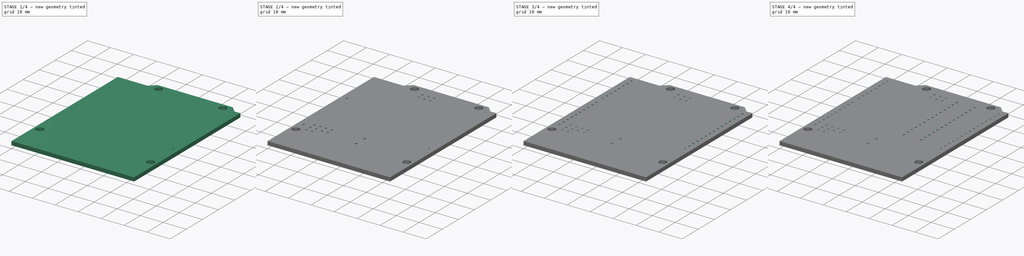
[diagram: build sequence overview — one tinted view per stage of 4, left to right]
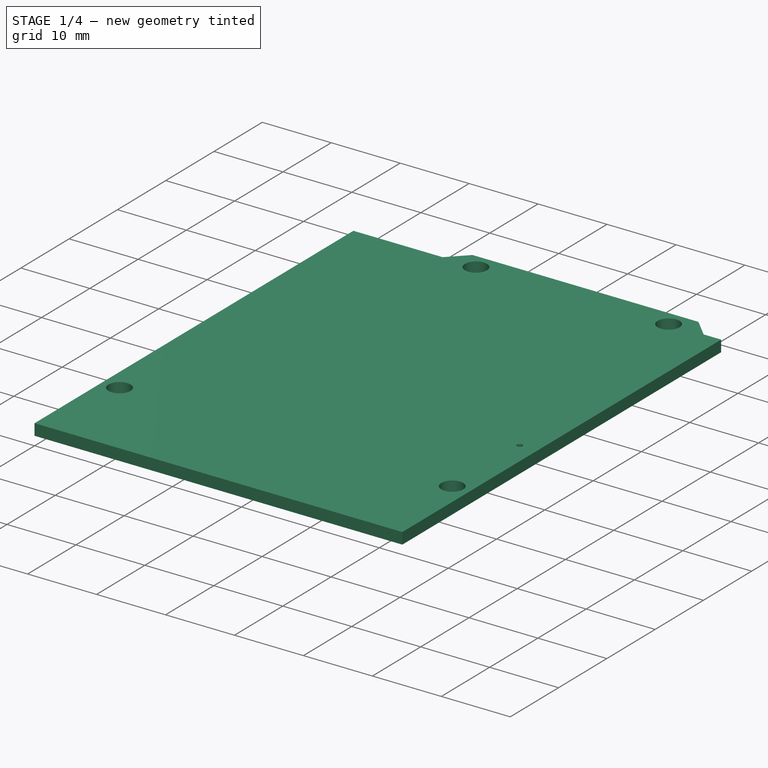
[diagram: stage 1 of 4 — iso view after this stage's code; geometry added in this stage tinted green]
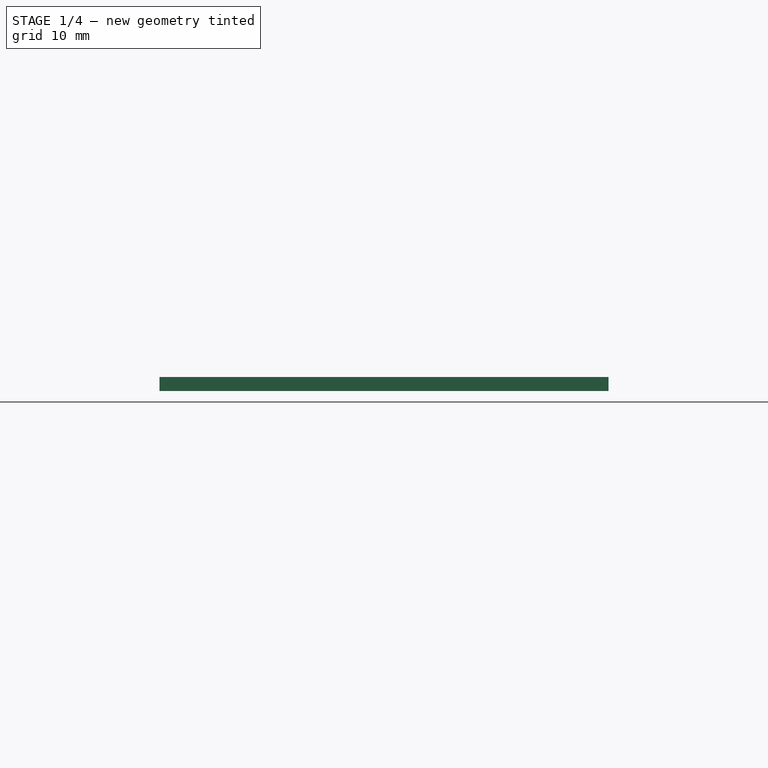
[diagram: stage 1 of 4 — front view after this stage's code; geometry added in this stage tinted green]
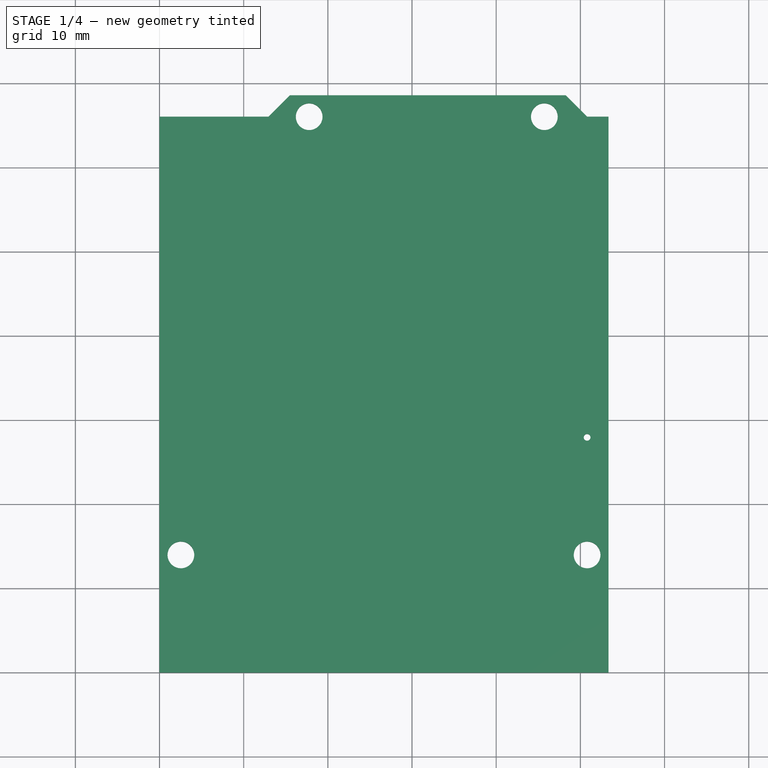
[diagram: stage 1 of 4 — top view after this stage's code; geometry added in this stage tinted green]
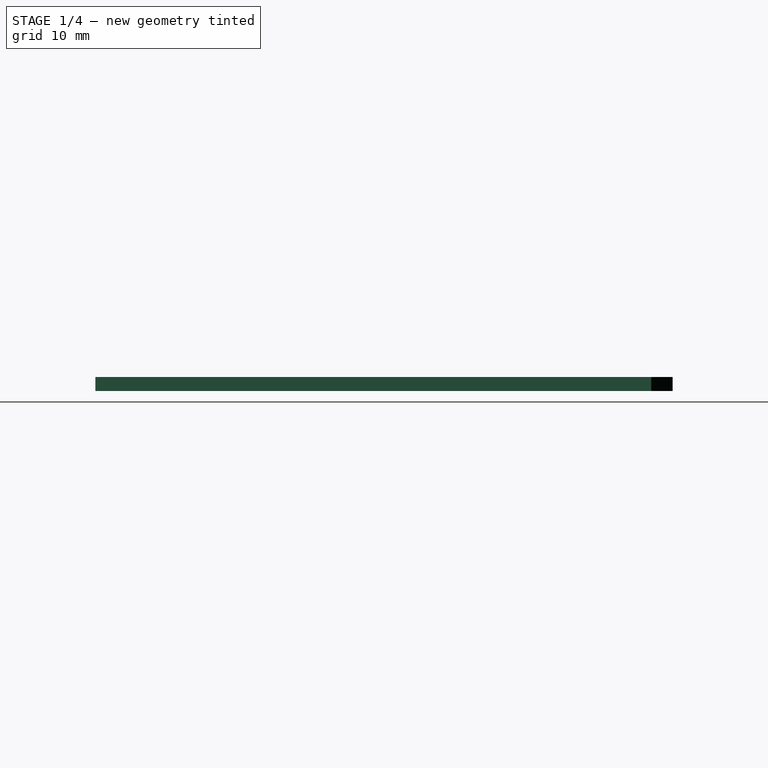
[diagram: stage 1 of 4 — right view after this stage's code; geometry added in this stage tinted green]
FCSTD DOCUMENT  (FreeCAD 0.18R4 (GitTag))
Label: arduinounopcb
License: All rights reserved
LicenseURL: http://en.wikipedia.org/wiki/All_rights_reserved
objects: Sketcher::SketchObject×6, PartDesign::Pocket×5, PartDesign::LinearPattern×4, PartDesign::Pad×1, PartDesign::Body×1, App::Part×1
note: 23 computed .brp shape members not serialized (recipe doc carries the construction recipe); baked Part::Feature solids carry a one-line shape summary decoded from their .brp

FEATURE [Sketcher::SketchObject] Sketch
  MapMode = 5
  Support = -> [XY_Plane001]
  sketch-geometry (13):
    g0: LineSegment StartX=0 StartY=0 StartZ=0 EndX=53.34 EndY=0 EndZ=0
    g1: LineSegment StartX=53.34 StartY=0 StartZ=0 EndX=53.34 EndY=66.04 EndZ=0
    g2: LineSegment StartX=0 StartY=66.04 StartZ=0 EndX=0 EndY=0 EndZ=0
    g3: LineSegment StartX=0 StartY=66.04 StartZ=0 EndX=12.95 EndY=66.04 EndZ=0
    g4: LineSegment StartX=12.95 StartY=66.04 StartZ=0 EndX=15.49 EndY=68.58 EndZ=0
    g5: LineSegment StartX=15.49 StartY=68.58 StartZ=0 EndX=48.26 EndY=68.58 EndZ=0
    g6: LineSegment StartX=48.26 StartY=68.58 StartZ=0 EndX=50.8 EndY=66.04 EndZ=0
    g7: LineSegment StartX=50.8 StartY=66.04 StartZ=0 EndX=53.34 EndY=66.04 EndZ=0
    g8: Circle CenterX=17.78 CenterY=66.04 CenterZ=0 NormalX=0 NormalY=0 NormalZ=1 AngleXU=0 Radius=1.5875
    g9: Circle CenterX=45.72 CenterY=66.04 CenterZ=0 NormalX=0 NormalY=0 NormalZ=1 AngleXU=0 Radius=1.5875
    g10: Circle CenterX=2.54 CenterY=13.97 CenterZ=0 NormalX=0 NormalY=0 NormalZ=1 AngleXU=0 Radius=1.5875
    g11: Circle CenterX=50.8 CenterY=13.97 CenterZ=0 NormalX=0 NormalY=0 NormalZ=1 AngleXU=0 Radius=1.5875
    g12: LineSegment [constr] StartX=12.95 StartY=66.04 StartZ=0 EndX=50.8 EndY=66.04 EndZ=0
  constraints (37):
    c: Coincident(g0,g1)
    c: Coincident(g2,g0)
    c: Horizontal(g0)
    c: Vertical(g1)
    c: Vertical(g2)
    c: Coincident(g0,g-1)
    c: Coincident(g2,g3)
    c: Horizontal(g3)
    c: Coincident(g3,g4)
    c: Coincident(g4,g5)
    c: Horizontal(g5)
    c: Coincident(g5,g6)
    c: Coincident(g6,g7)
    c: Coincident(g7,g1)
    c: Horizontal(g7)
    c: DistanceY(g2,g2) = 66.04
    c: Equal(g1,g2)
    c: Horizontal(g11,g10)
    c: Equal(g10,g11)
    c: Equal(g11,g9)
    c: Equal(g9,g8)
    c: Radius(g11) = 1.5875
    c: DistanceY(g0,g11) = 13.97
    c: DistanceX(g8,g1) = 35.56
    c: Coincident(g12,g3)
    c: Coincident(g12,g6)
    c: Angle(g12,g4) = 0.785398
    c: Angle(g6,g12) = 0.785398
    c: DistanceX(g7,g7) = 2.54
    c: DistanceX(g3,g1) = 40.39
    c: DistanceY(g0,g5) = 68.58
    c: DistanceX(g0,g0) = 53.34
    c: PointOnObject(g8,g12)
    c: PointOnObject(g9,g12)
    c: DistanceX(g9,g1) = 7.62
    c: DistanceX(g11,g0) = 2.54
    c: DistanceX(g10,g0) = 50.8
FEATURE [PartDesign::Pad] Pad
  Length = 1.65
  Length2 = 100
  Profile = -> Sketch
  Refine = true
  Type = 0
FEATURE [Sketcher::SketchObject] Sketch001
  ExternalGeometry = -> [Pad]
  MapMode = 5
  Placement = pos=(0,0,1.65) rot=(0,0,1;0rad)
  Support = -> [Pad]
  sketch-geometry (1):
    g0: Circle CenterX=50.8 CenterY=27.94 CenterZ=0 NormalX=0 NormalY=0 NormalZ=1 AngleXU=0 Radius=0.4
  constraints (3):
    c: DistanceY(g-4,g0) = 27.94
    c: Radius(g0) = 0.4
    c: DistanceX(g0,g-4) = 2.54
FEATURE [PartDesign::Pocket] Pocket
  BaseFeature = -> Pad
  Length = 2
  Length2 = 100
  Profile = -> Sketch001
  Refine = true
  Type = 0
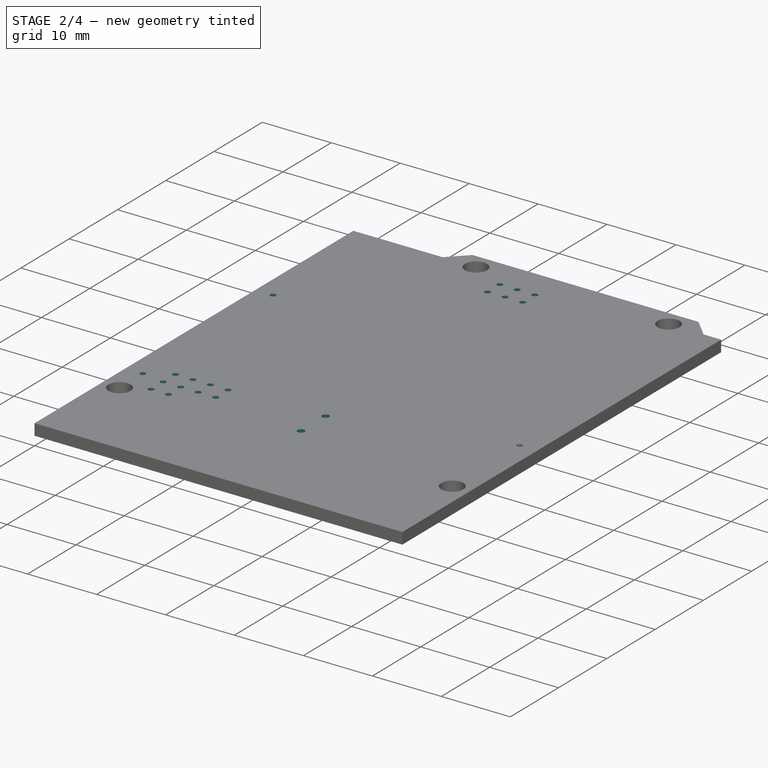
[diagram: stage 2 of 4 — iso view after this stage's code; geometry added in this stage tinted green]
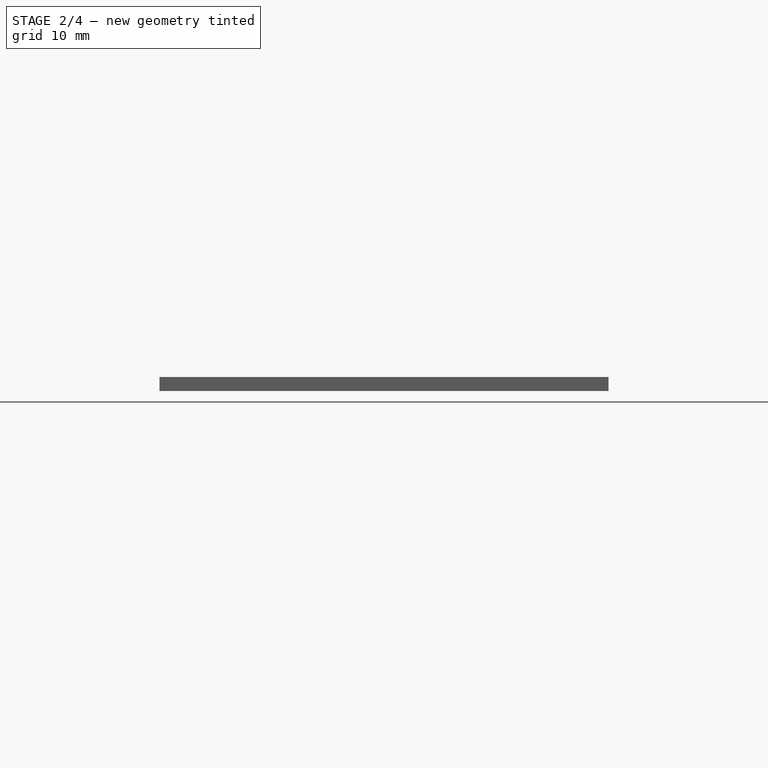
[diagram: stage 2 of 4 — front view after this stage's code; geometry added in this stage tinted green]
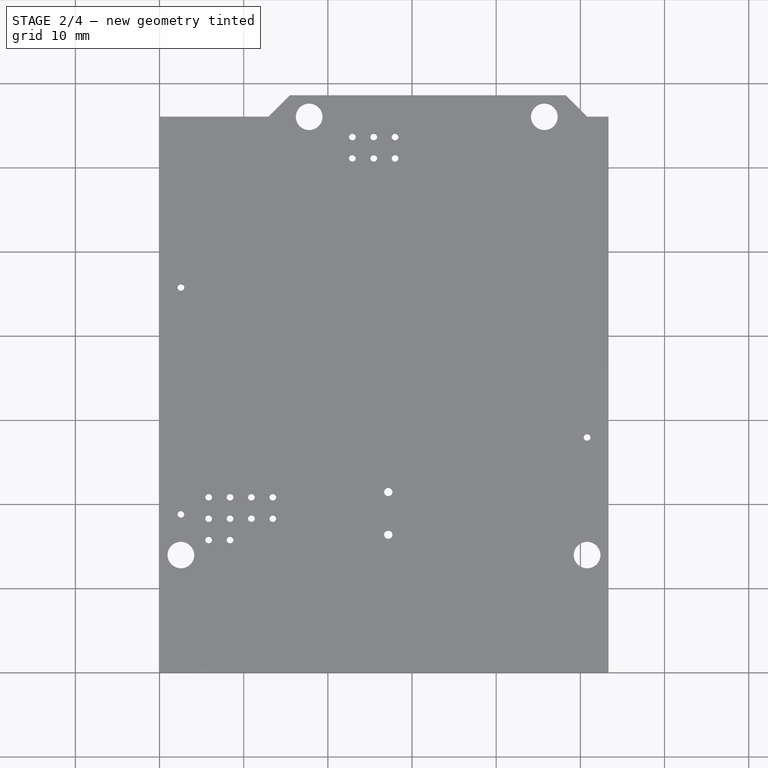
[diagram: stage 2 of 4 — top view after this stage's code; geometry added in this stage tinted green]
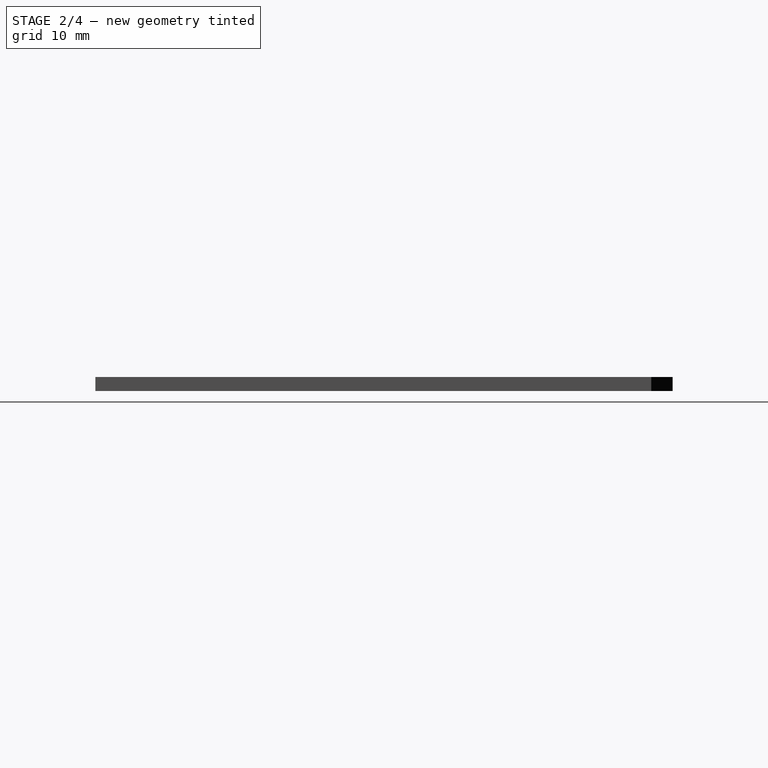
[diagram: stage 2 of 4 — right view after this stage's code; geometry added in this stage tinted green]
FEATURE [Sketcher::SketchObject] Sketch002
  ExternalGeometry = -> [Pocket]
  MapMode = 5
  Placement = pos=(0,0,1.65) rot=(0,0,1;0rad)
  Support = -> [Pocket]
  sketch-geometry (1):
    g0: Circle CenterX=2.54 CenterY=18.8 CenterZ=0 NormalX=0 NormalY=0 NormalZ=1 AngleXU=0 Radius=0.4
  constraints (3):
    c: Equal(g-3,g0)
    c: DistanceX(g-1,g0) = 2.54
    c: DistanceY(g-1,g0) = 18.8
FEATURE [PartDesign::Pocket] Pocket001
  BaseFeature = -> Pocket
  Length = 2
  Length2 = 100
  Profile = -> Sketch002
  Refine = true
  Type = 0
FEATURE [Sketcher::SketchObject] Sketch003
  ExternalGeometry = -> [Pocket001]
  MapMode = 5
  Placement = pos=(0,0,1.65) rot=(0,0,1;0rad)
  Support = -> [Pocket001]
  sketch-geometry (1):
    g0: Circle CenterX=2.54 CenterY=45.75 CenterZ=0 NormalX=0 NormalY=0 NormalZ=1 AngleXU=0 Radius=0.4
  constraints (3):
    c: DistanceY(g-1,g0) = 45.75
    c: Equal(g0,g-3)
    c: Vertical(g0,g-3)
FEATURE [PartDesign::Pocket] Pocket002
  BaseFeature = -> Pocket001
  Length = 2
  Length2 = 100
  Profile = -> Sketch003
  Refine = true
  Type = 0
FEATURE [Sketcher::SketchObject] Sketch004
  ExternalGeometry = -> [Pocket002]
  MapMode = 5
  Placement = pos=(0,0,1.65) rot=(0,0,1;0rad)
  Support = -> [Pocket002]
  sketch-geometry (32):
    g0: Circle CenterX=22.91 CenterY=63.64 CenterZ=0 NormalX=0 NormalY=0 NormalZ=1 AngleXU=0 Radius=0.4
    g1: Circle CenterX=25.45 CenterY=63.64 CenterZ=0 NormalX=0 NormalY=0 NormalZ=1 AngleXU=0 Radius=0.4
    g2: Circle CenterX=27.99 CenterY=63.64 CenterZ=0 NormalX=0 NormalY=0 NormalZ=1 AngleXU=0 Radius=0.4
    g3: Circle CenterX=22.91 CenterY=61.1 CenterZ=0 NormalX=0 NormalY=0 NormalZ=1 AngleXU=0 Radius=0.4
    g4: Circle CenterX=25.45 CenterY=61.1 CenterZ=0 NormalX=0 NormalY=0 NormalZ=1 AngleXU=0 Radius=0.4
    g5: Circle CenterX=27.99 CenterY=61.1 CenterZ=0 NormalX=0 NormalY=0 NormalZ=1 AngleXU=0 Radius=0.4
    g6: LineSegment [constr] StartX=22.91 StartY=63.64 StartZ=0 EndX=22.91 EndY=61.1 EndZ=0
    g7: LineSegment [constr] StartX=22.91 StartY=61.1 StartZ=0 EndX=25.45 EndY=61.1 EndZ=0
    g8: LineSegment [constr] StartX=25.45 StartY=61.1 StartZ=0 EndX=25.45 EndY=63.64 EndZ=0
    g9: LineSegment [constr] StartX=25.45 StartY=63.64 StartZ=0 EndX=27.99 EndY=63.64 EndZ=0
    g10: LineSegment [constr] StartX=27.99 StartY=63.64 StartZ=0 EndX=27.99 EndY=61.1 EndZ=0
    g11: Circle CenterX=5.84 CenterY=20.83 CenterZ=0 NormalX=0 NormalY=0 NormalZ=1 AngleXU=0 Radius=0.4
    g12: Circle CenterX=8.38 CenterY=20.83 CenterZ=0 NormalX=0 NormalY=0 NormalZ=1 AngleXU=0 Radius=0.4
    g13: Circle CenterX=10.92 CenterY=20.83 CenterZ=0 NormalX=0 NormalY=0 NormalZ=1 AngleXU=0 Radius=0.4
    g14: Circle CenterX=13.46 CenterY=20.83 CenterZ=0 NormalX=0 NormalY=0 NormalZ=1 AngleXU=0 Radius=0.4
    g15: Circle CenterX=5.84 CenterY=18.29 CenterZ=0 NormalX=0 NormalY=0 NormalZ=1 AngleXU=0 Radius=0.4
    g16: Circle CenterX=8.38 CenterY=18.29 CenterZ=0 NormalX=0 NormalY=0 NormalZ=1 AngleXU=0 Radius=0.4
    g17: Circle CenterX=10.92 CenterY=18.29 CenterZ=0 NormalX=0 NormalY=0 NormalZ=1 AngleXU=0 Radius=0.4
    g18: Circle CenterX=13.46 CenterY=18.29 CenterZ=0 NormalX=0 NormalY=0 NormalZ=1 AngleXU=0 Radius=0.4
    g19: Circle CenterX=5.84 CenterY=15.75 CenterZ=0 NormalX=0 NormalY=0 NormalZ=1 AngleXU=0 Radius=0.4
    g20: Circle CenterX=8.38 CenterY=15.75 CenterZ=0 NormalX=0 NormalY=0 NormalZ=1 AngleXU=0 Radius=0.4
    g21: LineSegment [constr] StartX=5.84 StartY=20.83 StartZ=0 EndX=5.84 EndY=18.29 EndZ=0
    g22: LineSegment [constr] StartX=5.84 StartY=18.29 StartZ=0 EndX=5.84 EndY=15.75 EndZ=0
    g23: LineSegment [constr] StartX=5.84 StartY=15.75 StartZ=0 EndX=8.38 EndY=15.75 EndZ=0
    g24: LineSegment [constr] StartX=8.38 StartY=15.75 StartZ=0 EndX=8.38 EndY=18.29 EndZ=0
    g25: LineSegment [constr] StartX=8.38 StartY=18.29 StartZ=0 EndX=8.38 EndY=20.83 EndZ=0
    g26: LineSegment [constr] StartX=8.38 StartY=20.83 StartZ=0 EndX=10.92 EndY=20.83 EndZ=0
    g27: LineSegment [constr] StartX=10.92 StartY=20.83 StartZ=0 EndX=10.92 EndY=18.29 EndZ=0
    g28: LineSegment [constr] StartX=10.92 StartY=18.29 StartZ=0 EndX=13.46 EndY=18.29 EndZ=0
    g29: LineSegment [constr] StartX=13.46 StartY=18.29 StartZ=0 EndX=13.46 EndY=20.83 EndZ=0
    g30: Circle CenterX=27.18 CenterY=16.38 CenterZ=0 NormalX=0 NormalY=0 NormalZ=1 AngleXU=0 Radius=0.5
    g31: Circle CenterX=27.18 CenterY=21.46 CenterZ=0 NormalX=0 NormalY=0 NormalZ=1 AngleXU=0 Radius=0.5
  constraints (82):
    c: Coincident(g6,g0)
    c: Coincident(g6,g3)
    c: Coincident(g7,g3)
    c: Coincident(g7,g4)
    c: Coincident(g7,g8)
    c: Coincident(g8,g1)
    c: Vertical(g8)
    c: Coincident(g8,g9)
    c: Coincident(g9,g2)
    c: Horizontal(g9)
    c: Coincident(g9,g10)
    c: Coincident(g10,g5)
    c: Vertical(g10)
    c: Vertical(g6)
    c: Horizontal(g7)
    c: Equal(g8,g6)
    c: Equal(g6,g10)
    c: Equal(g0,g3)
    c: Equal(g3,g4)
    c: Equal(g4,g1)
    c: Equal(g1,g2)
    c: Equal(g2,g5)
    c: Equal(g-3,g0)
    c: DistanceY(g6,g6) = 2.54
    c: Equal(g7,g6)
    c: Equal(g9,g7)
    c: DistanceX(g0,g-4) = 30.43
    c: DistanceY(g-1,g0) = 63.64
    c: Equal(g18,g14)
    c: Equal(g14,g13)
    c: Equal(g13,g17)
    c: Equal(g17,g12)
    c: Equal(g12,g16)
    c: Equal(g16,g20)
    c: Equal(g20,g19)
    c: Equal(g19,g15)
    c: Equal(g15,g11)
    c: Equal(g11,g-5)
    c: Coincident(g21,g11)
    c: Coincident(g21,g15)
    c: Coincident(g21,g22)
    c: Coincident(g22,g19)
    c: Coincident(g22,g23)
    c: Coincident(g23,g20)
    c: Coincident(g23,g24)
    c: Coincident(g24,g16)
    c: Coincident(g24,g25)
    c: Coincident(g25,g12)
    c: Vertical(g25)
    c: Coincident(g25,g26)
    c: Coincident(g26,g13)
    c: Coincident(g26,g27)
    c: Coincident(g27,g17)
    c: Coincident(g27,g28)
    c: Coincident(g28,g18)
    c: Coincident(g28,g29)
    c: Coincident(g29,g14)
    c: Vertical(g29)
    c: Horizontal(g28)
    c: Horizontal(g23)
    c: Horizontal(g26)
    c: Vertical(g21)
    c: Vertical(g22)
    c: Vertical(g24)
    c: Vertical(g27)
    c: Equal(g28,g26)
    c: Equal(g26,g23)
    c: Equal(g22,g23)
    c: Equal(g22,g21)
    c: Equal(g21,g25)
    c: Equal(g25,g24)
    c: Equal(g24,g27)
    c: Equal(g27,g29)
    c: Equal(g21,g6)
    c: DistanceX(g-1,g19) = 5.84
    c: DistanceY(g-1,g19) = 15.75
    c: Vertical(g31,g30)
    c: DistanceY(g30,g31) = 5.08
    c: Radius(g31) = 0.5
    c: Equal(g30,g31)
    c: DistanceY(g-1,g30) = 16.38
    c: DistanceX(g-1,g30) = 27.18
FEATURE [PartDesign::Pocket] Pocket003
  BaseFeature = -> Pocket002
  Length = 2
  Length2 = 100
  Profile = -> Sketch004
  Refine = true
  Type = 0
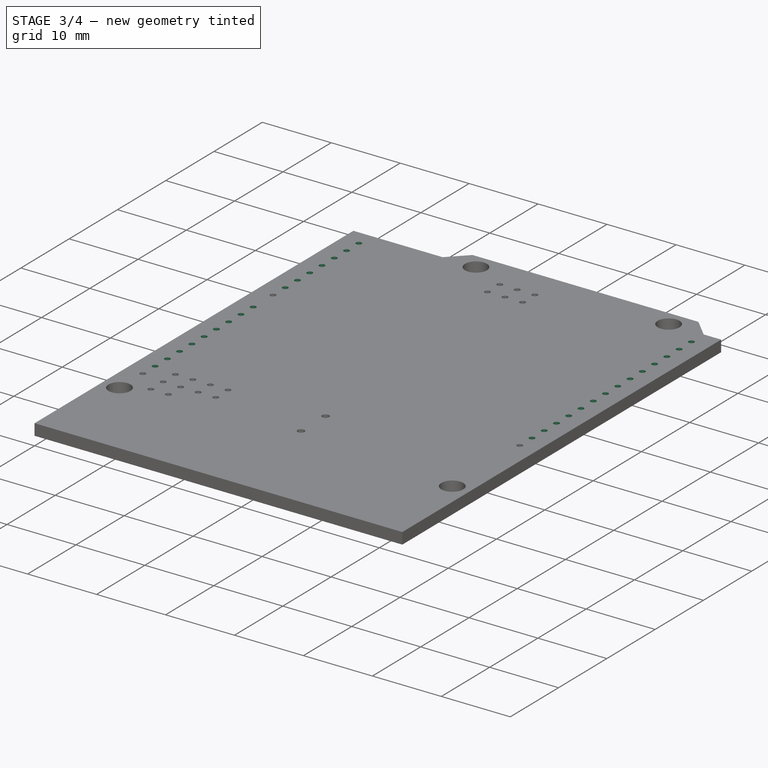
[diagram: stage 3 of 4 — iso view after this stage's code; geometry added in this stage tinted green]
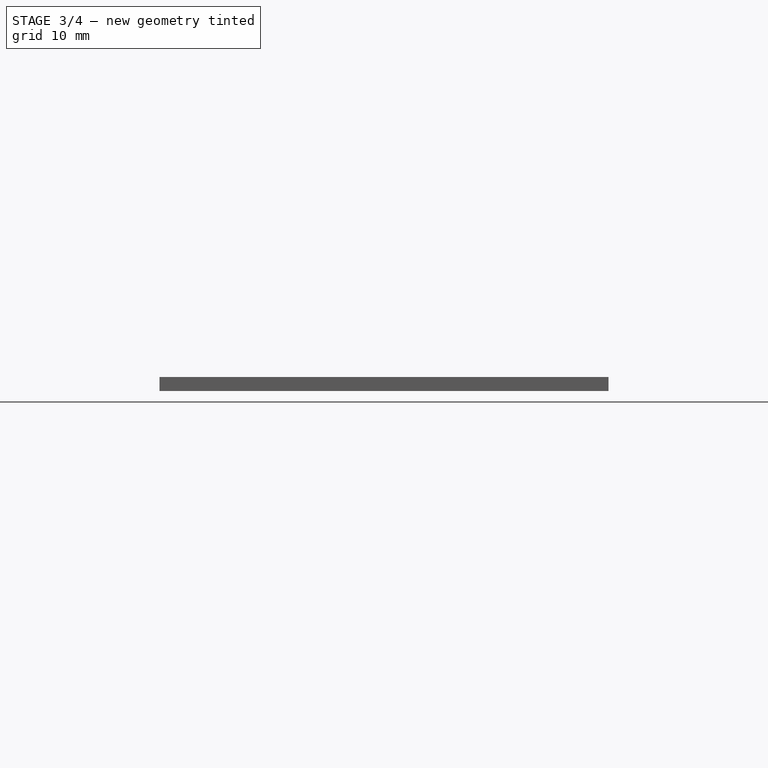
[diagram: stage 3 of 4 — front view after this stage's code; geometry added in this stage tinted green]
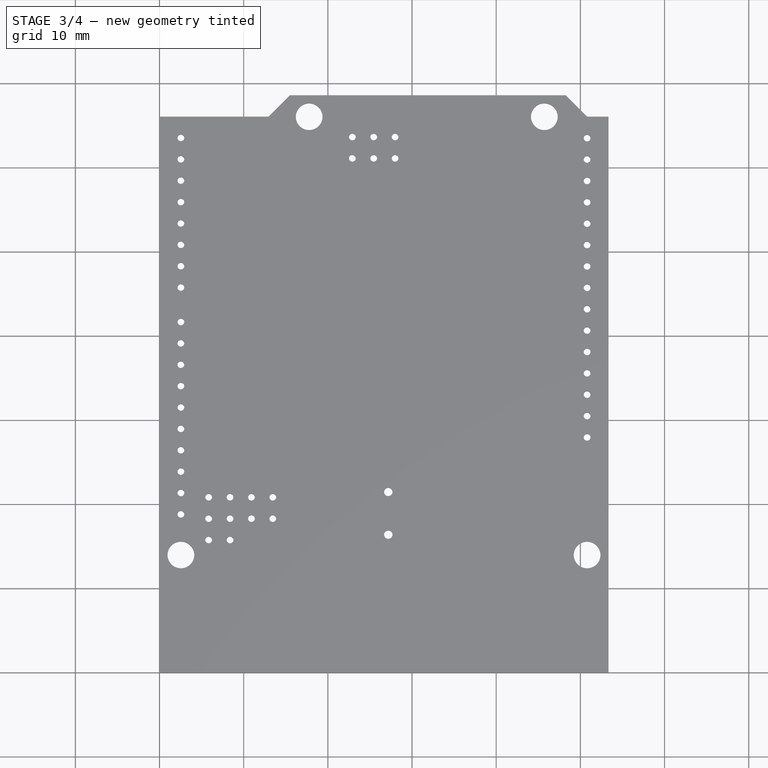
[diagram: stage 3 of 4 — top view after this stage's code; geometry added in this stage tinted green]
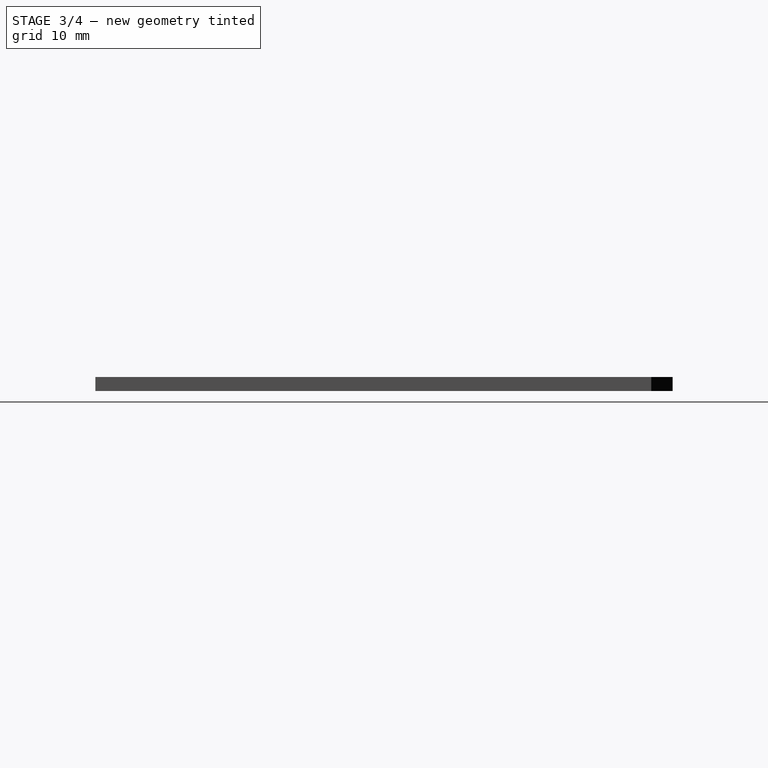
[diagram: stage 3 of 4 — right view after this stage's code; geometry added in this stage tinted green]
FEATURE [PartDesign::LinearPattern] LinearPattern
  BaseFeature = -> Pocket003
  Direction = -> Y_Axis001
  Length = 35.56
  Occurrences = 15
  Originals = -> [Pocket]
  Refine = true
FEATURE [PartDesign::LinearPattern] LinearPattern001
  BaseFeature = -> LinearPattern
  Direction = -> Y_Axis001
  Length = 22.86
  Occurrences = 10
  Originals = -> [Pocket001]
  Refine = true
FEATURE [PartDesign::LinearPattern] LinearPattern002
  BaseFeature = -> LinearPattern001
  Direction = -> Y_Axis001
  Length = 17.78
  Occurrences = 8
  Originals = -> [Pocket002]
  Refine = true
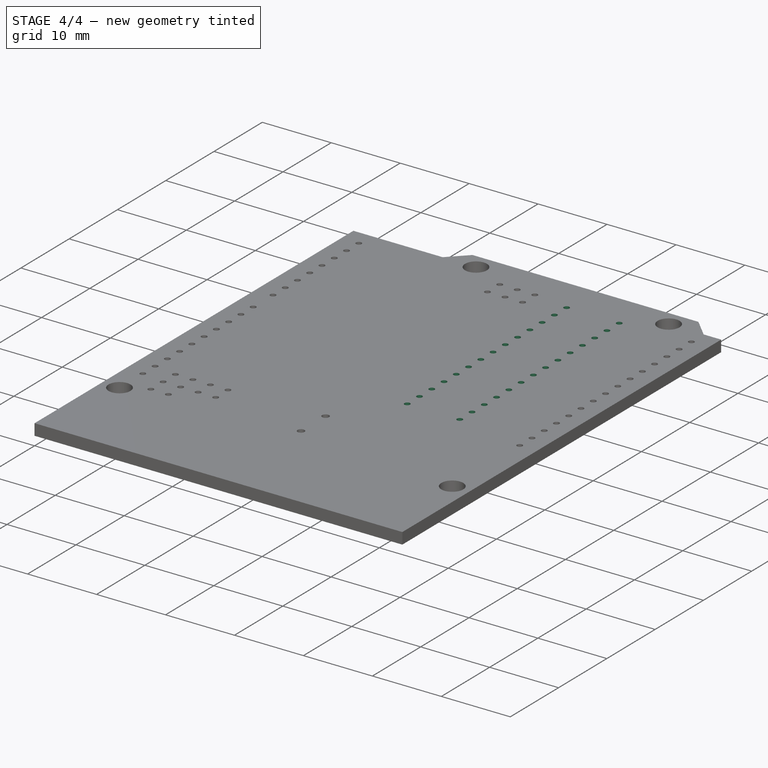
[diagram: stage 4 of 4 — iso view after this stage's code; geometry added in this stage tinted green]
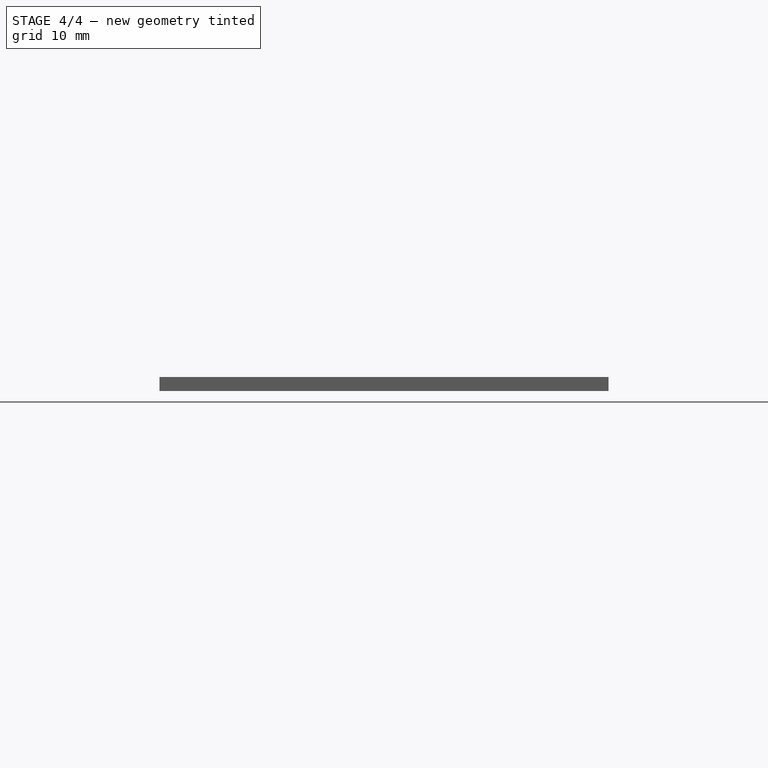
[diagram: stage 4 of 4 — front view after this stage's code; geometry added in this stage tinted green]
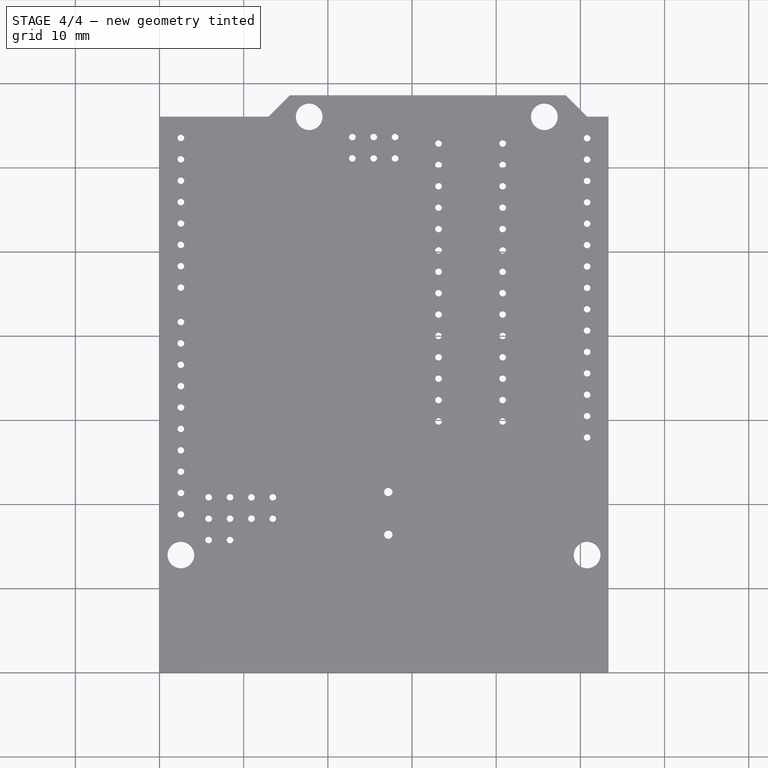
[diagram: stage 4 of 4 — top view after this stage's code; geometry added in this stage tinted green]
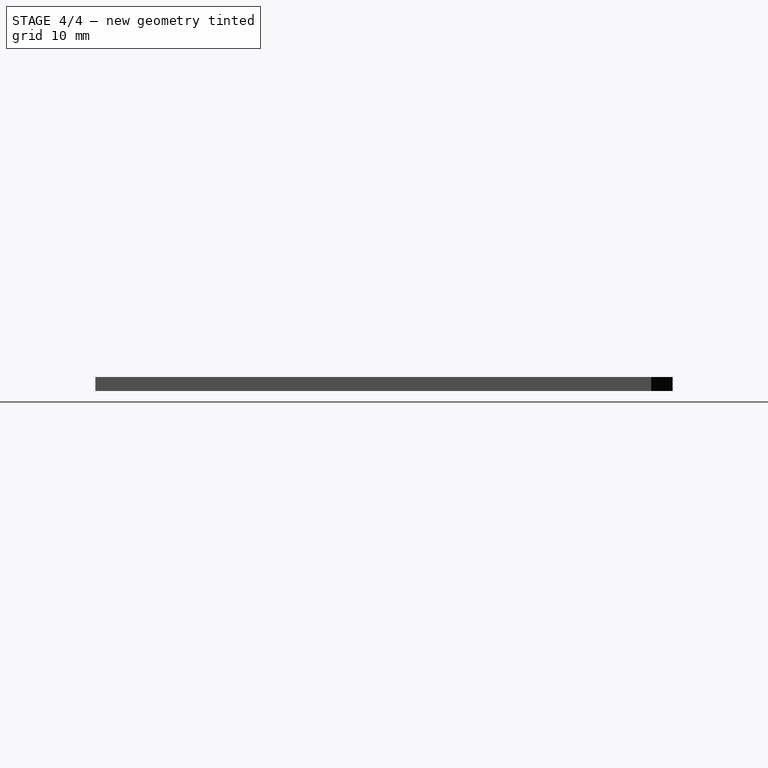
[diagram: stage 4 of 4 — right view after this stage's code; geometry added in this stage tinted green]
FEATURE [Sketcher::SketchObject] Sketch005
  ExternalGeometry = -> [LinearPattern002]
  MapMode = 5
  Placement = pos=(0,0,1.65) rot=(0,0,1;0rad)
  Support = -> [LinearPattern002]
  sketch-geometry (2):
    g0: Circle CenterX=33.15 CenterY=29.85 CenterZ=0 NormalX=0 NormalY=0 NormalZ=1 AngleXU=0 Radius=0.4
    g1: Circle CenterX=40.77 CenterY=29.85 CenterZ=0 NormalX=0 NormalY=0 NormalZ=1 AngleXU=0 Radius=0.4
  constraints (6):
    c: Equal(g0,g1)
    c: Equal(g1,g-3)
    c: Horizontal(g1,g0)
    c: DistanceY(g-1,g0) = 29.85
    c: DistanceX(g0,g1) = 7.62
    c: DistanceX(g-1,g0) = 33.15
FEATURE [PartDesign::Pocket] Pocket004
  BaseFeature = -> LinearPattern002
  Length = 2
  Length2 = 100
  Profile = -> Sketch005
  Refine = true
  Type = 0
FEATURE [PartDesign::LinearPattern] LinearPattern003
  BaseFeature = -> Pocket004
  Direction = -> Y_Axis001
  Length = 33.02
  Occurrences = 14
  Originals = -> [Pocket004]
  Refine = true
FEATURE [PartDesign::Body] Body  label="Arduino uno PCB001"
  Group = -> [Sketch,Pad,Sketch001,Pocket,Sketch002,Pocket001,Sketch003,Pocket002,Sketch004,Pocket003,LinearPattern,LinearPattern001,LinearPattern002,Sketch005,Pocket004,LinearPattern003]
  Origin = -> Origin001
  Tip = -> LinearPattern003
FEATURE [App::Part] Part  label="Arduino uno PCB"
  Group = -> [Body]
  Origin = -> Origin
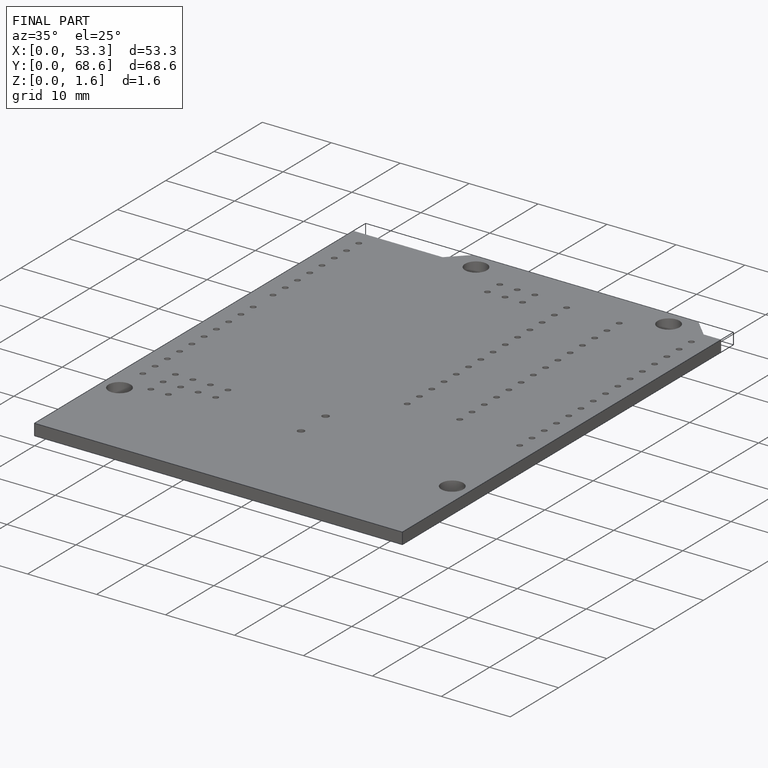
[diagram: finished part — iso view with bounding-box wireframe]
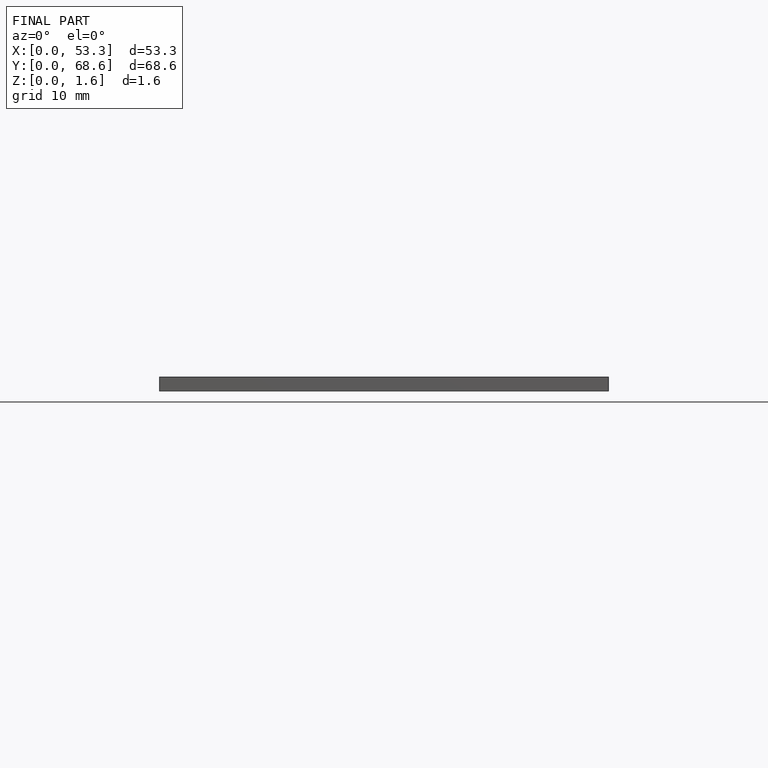
[diagram: finished part — front view with bounding-box wireframe]
